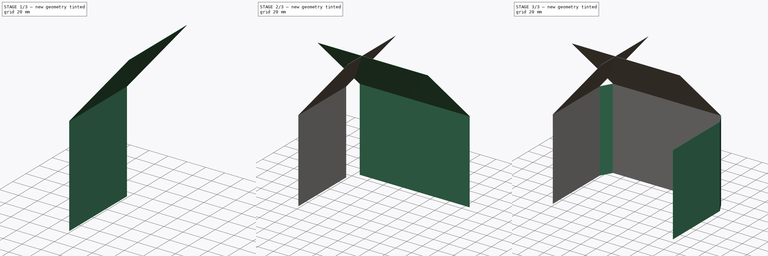
[diagram: build sequence overview — one tinted view per stage of 3, left to right]
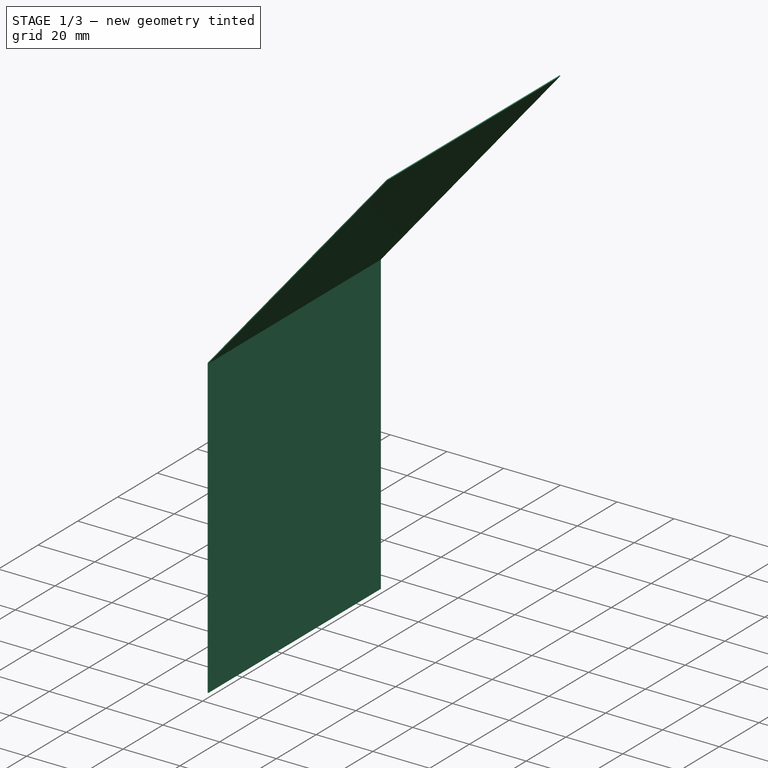
[diagram: stage 1 of 3 — iso view after this stage's code; geometry added in this stage tinted green]
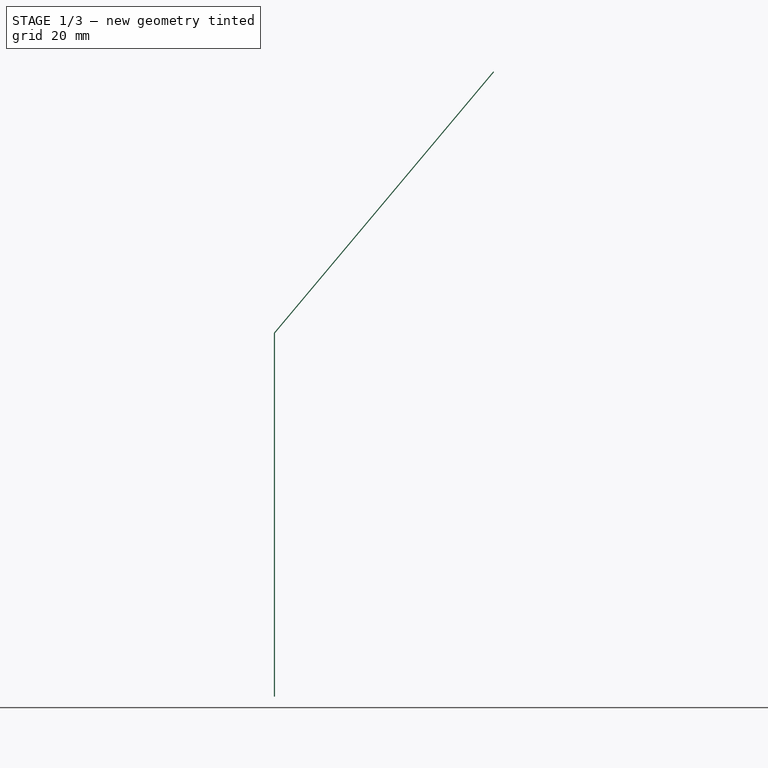
[diagram: stage 1 of 3 — front view after this stage's code; geometry added in this stage tinted green]
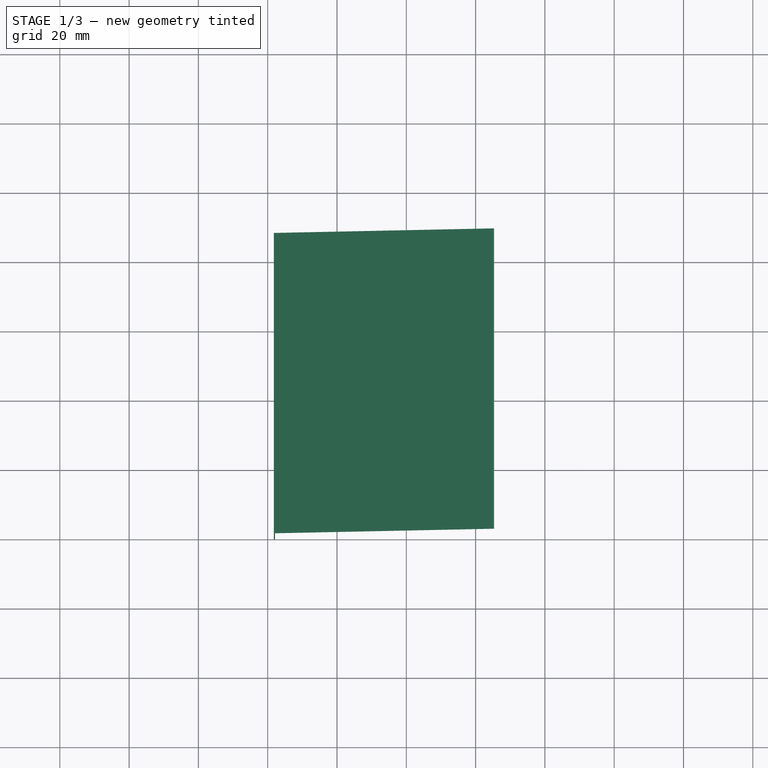
[diagram: stage 1 of 3 — top view after this stage's code; geometry added in this stage tinted green]
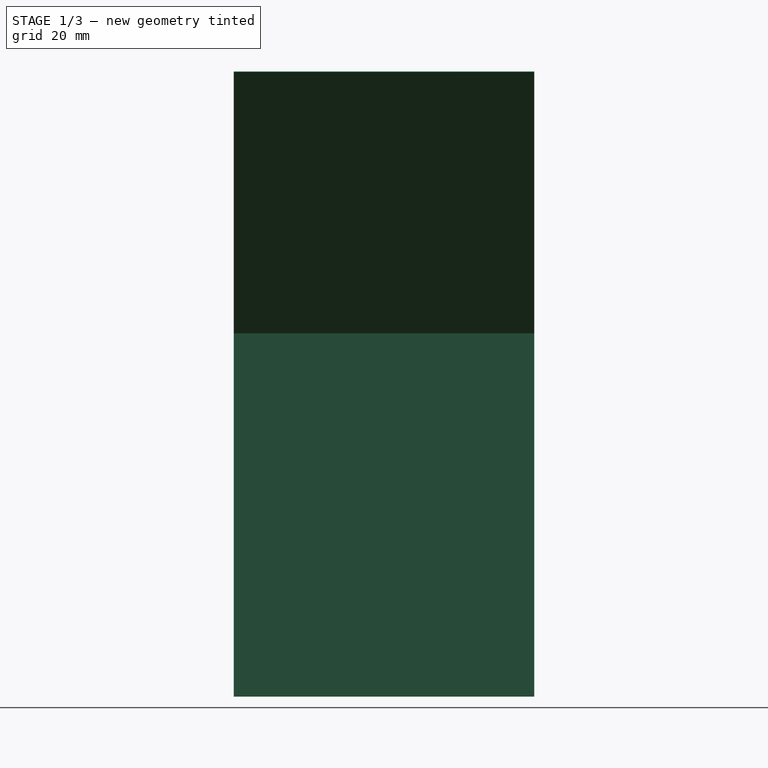
[diagram: stage 1 of 3 — right view after this stage's code; geometry added in this stage tinted green]
FCSTD DOCUMENT  (FreeCAD 0.22R36340 (Git))
Label: composit_stand8_bottom
License: All rights reserved
LicenseURL: http://en.wikipedia.org/wiki/All_rights_reserved
objects: Sketcher::SketchObject×5, Part::FeaturePython×5, PartDesign::FeaturePython×2, Part::Extrusion×2, Part::Mirroring×1, PartDesign::SubShapeBinder×1, PartDesign::Body×1
note: 17 computed .brp shape members not serialized (recipe doc carries the construction recipe); baked Part::Feature solids carry a one-line shape summary decoded from their .brp

FEATURE [Part::FeaturePython] BaseBend002  # WARN: FeaturePython — macro-defined, semantics opaque (R4)
  BendSide = 1
  BendSketch = -> Sketch002
  MidPlane = false
  Reverse = true
  length = 86.687
  radius = 0.1
  thickness = 0.3
  expr: length = <<Sketch>>.Constraints.side
FEATURE [Sketcher::SketchObject] Sketch003
  ExternalGeometry = -> [Sketch002]
  FullyConstrained = true
  Placement = pos=(0,0,0) rot=(1,0,0;1.5708rad)
  sketch-geometry (2):
    g0: LineSegment StartX=-14.8939 StartY=180.435 StartZ=0 EndX=-78.2081 EndY=104.98 EndZ=0
    g1: LineSegment StartX=-78.2081 StartY=104.98 StartZ=0 EndX=-78.2081 EndY=0 EndZ=0
  constraints (5):
    c: Coincident(g0,g1)
    c: Vertical(g1)
    c: PointOnObject(g1,g-1)
    c: Symmetric(g0,g-3,g-2)
    c: Symmetric(g0,g-3,g-2)
FEATURE [Part::FeaturePython] BaseBend003  # WARN: FeaturePython — macro-defined, semantics opaque (R4)
  BendSide = 1
  BendSketch = -> Sketch003
  MidPlane = false
  Reverse = true
  length = 86.687
  radius = 0.1
  thickness = 0.3
  expr: length = <<BaseBend002>>.length
FEATURE [Part::Extrusion] Extrude
  Base = -> Sketch002
  Dir = (0,-1,2e-16)
  DirMode = 2
  FaceMakerClass = Part::FaceMakerBullseye
  LengthFwd = 200
  LengthRev = 0
  Reversed = true
  Solid = false
  Symmetric = false
FEATURE [Part::Extrusion] Extrude001
  Base = -> Sketch001
  Dir = (1,0,0)
  DirMode = 2
  FaceMakerClass = Part::FaceMakerBullseye
  LengthFwd = 200
  LengthRev = 0
  Solid = false
  Symmetric = false
FEATURE [Part::FeaturePython] Cutout  # WARN: FeaturePython — macro-defined, semantics opaque (R4)
  Base = -> Extrude
  Tolerance = 0
  Tool = -> Extrude001
FEATURE [Sketcher::SketchObject] Sketch004
  AttachmentOffset = pos=(0,0,0) rot=(-1,0,0;1.5708rad)
  AttachmentSupport = -> [Sketch001]
  ExternalGeometry = -> [Cutout,Sketch]
  FullyConstrained = false
  MapMode = 7
  Placement = pos=(-3.5e-14,100.464,105) rot=(0,0.382683,0.92388;3.14159rad)
  sketch-geometry (7):
    g0: LineSegment StartX=-70.2782 StartY=0 StartZ=0 EndX=-70.2782 EndY=13.3366 EndZ=0
    g1: LineSegment StartX=-70.2782 StartY=13.3366 StartZ=0 EndX=-14.8939 EndY=106.681 EndZ=0
    g2: LineSegment StartX=-14.8939 StartY=106.681 StartZ=0 EndX=0 EndY=106.681 EndZ=0
    g3: LineSegment StartX=0 StartY=106.681 StartZ=0 EndX=0 EndY=146.515 EndZ=0
    g4: LineSegment StartX=0 StartY=146.515 StartZ=0 EndX=-128.948 EndY=146.515 EndZ=0
    g5: LineSegment StartX=-128.948 StartY=146.515 StartZ=0 EndX=-128.948 EndY=0 EndZ=0
    g6: LineSegment StartX=-128.948 StartY=0 StartZ=0 EndX=-70.2782 EndY=0 EndZ=0
  constraints (18):
    c: PointOnObject(g0,g-1)
    c: PointOnObject(g0,g-3)
    c: Vertical(g0)
    c: Coincident(g0,g1)
    c: Coincident(g1,g2)
    c: PointOnObject(g2,g-2)
    c: Horizontal(g2)
    c: Vertical(g0,g-4)
    c: Coincident(g1,g-3)
    c: Coincident(g2,g3)
    c: Vertical(g3)
    c: Coincident(g3,g4)
    c: Horizontal(g4)
    c: Coincident(g4,g5)
    c: PointOnObject(g5,g-1)
    c: Vertical(g5)
    c: Coincident(g5,g6)
    c: Coincident(g6,g0)
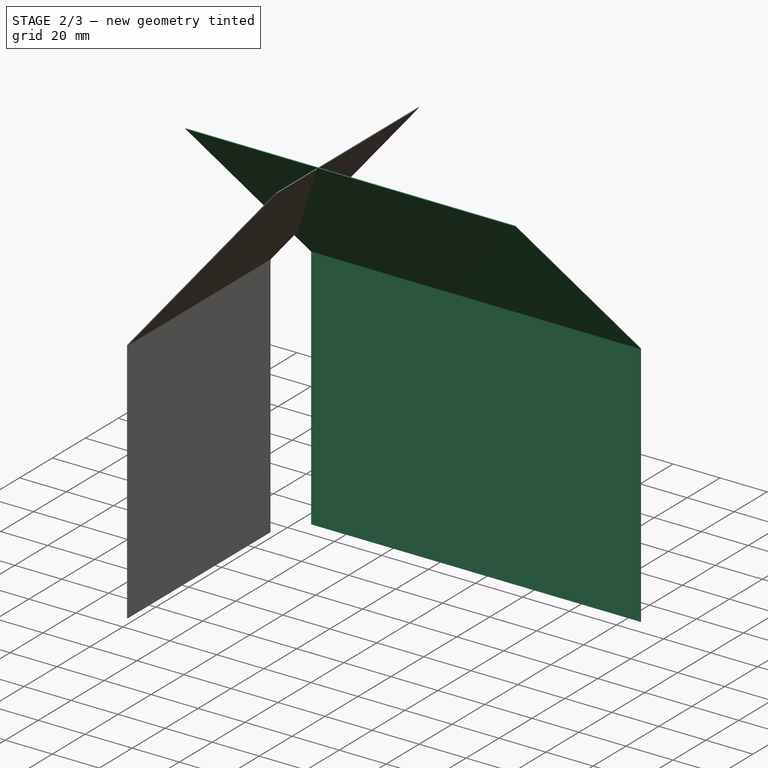
[diagram: stage 2 of 3 — iso view after this stage's code; geometry added in this stage tinted green]
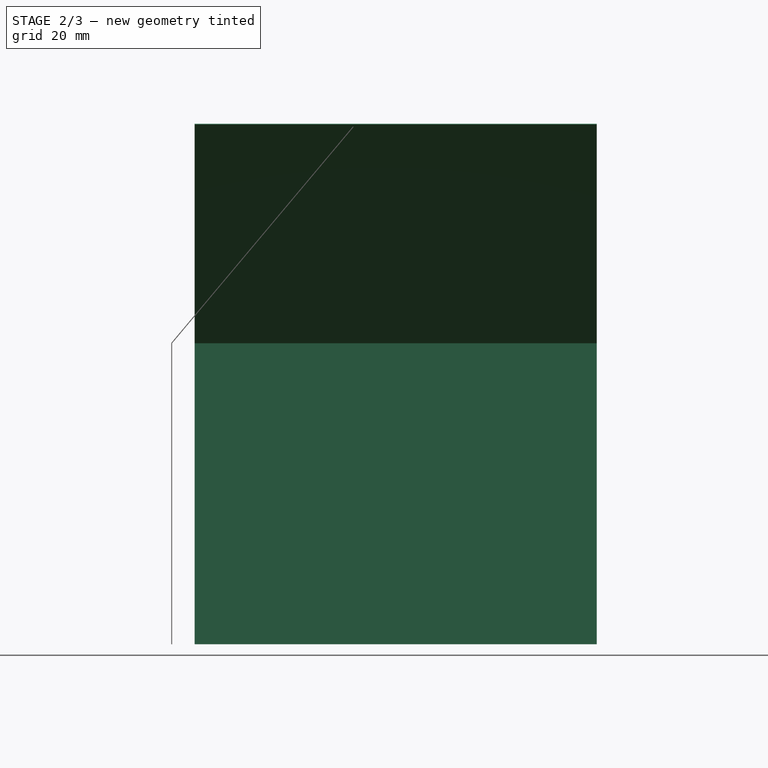
[diagram: stage 2 of 3 — front view after this stage's code; geometry added in this stage tinted green]
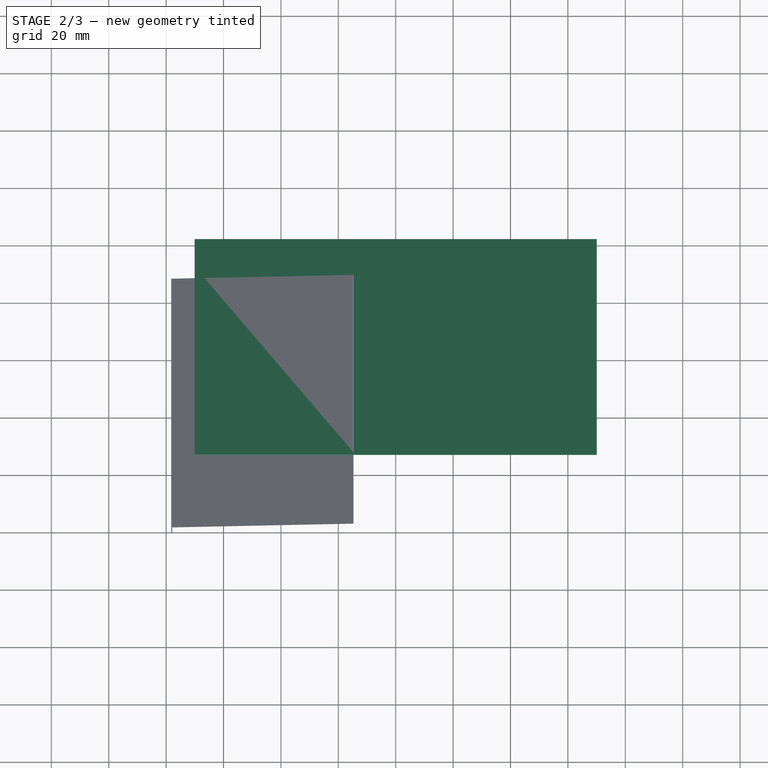
[diagram: stage 2 of 3 — top view after this stage's code; geometry added in this stage tinted green]
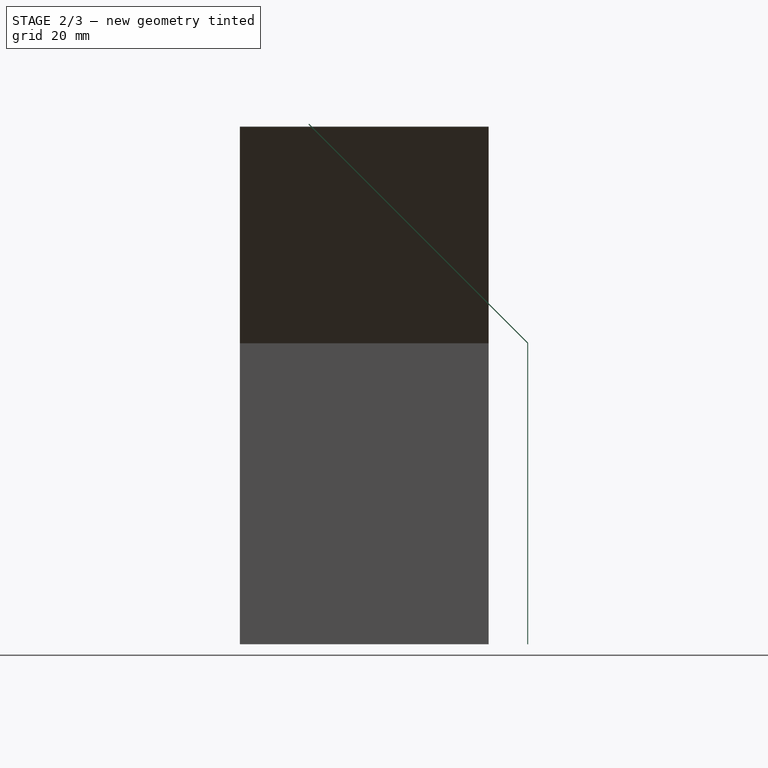
[diagram: stage 2 of 3 — right view after this stage's code; geometry added in this stage tinted green]
FEATURE [PartDesign::Body] Body
  Group = -> [Binder,BaseBend,Extend]
  Origin = -> Origin
  Tip = -> Extend
FEATURE [Sketcher::SketchObject] Sketch001
  FullyConstrained = false
  Placement = pos=(0,100.464,0) rot=(0.57735,0.57735,0.57735;2.0944rad)
  expr: .Placement.Base.y = <<Sketch>>.Constraints.width
  sketch-geometry (3):
    g0: LineSegment StartX=0 StartY=0 StartZ=0 EndX=0 EndY=105 EndZ=0
    g1: LineSegment StartX=0 StartY=105 StartZ=0 EndX=-76.3487 EndY=181.349 EndZ=0
    g2: ArcOfCircle CenterX=-0.4 CenterY=104.834 CenterZ=0 NormalX=0 NormalY=0 NormalZ=1 AngleXU=0 Radius=0.4 StartAngle=4.3e-15 EndAngle=0.785398
  constraints (9):
    c: Coincident(g-1,g0)
    c: PointOnObject(g0,g-2)
    c: Coincident(g0,g1)
    c: Tangent(g2,g0) = -1.5708
    c: Tangent(g2,g1) = -1.5708
    c: Radius(g2) = 0.4
    c: DistanceY(g2) = 104.834  'bottom'
    c: DistanceY(g0) = 105
    c: Angle(g1,g0) = 2.35619  'angle'
FEATURE [Sketcher::SketchObject] Sketch002
  FullyConstrained = false
  Placement = pos=(78.2082,0,0) rot=(1,0,0;1.5708rad)
  expr: .Placement.Base.x = <<Sketch>>.Constraints.length / 2
  expr: Constraints[6] = <<Sketch001>>.Constraints.bottom
  sketch-geometry (3):
    g0: LineSegment StartX=0 StartY=0 StartZ=0 EndX=0 EndY=104.98 EndZ=0
    g1: LineSegment StartX=0 StartY=104.98 StartZ=0 EndX=-63.3142 EndY=180.435 EndZ=0
    g2: ArcOfCircle CenterX=-0.4 CenterY=104.834 CenterZ=0 NormalX=0 NormalY=0 NormalZ=1 AngleXU=0 Radius=0.4 StartAngle=9.7e-15 EndAngle=0.698132
  constraints (8):
    c: Coincident(g-1,g0)
    c: PointOnObject(g0,g-2)
    c: Coincident(g0,g1)
    c: Tangent(g2,g0) = -1.5708
    c: Tangent(g2,g1) = -1.5708
    c: Radius(g2) = 0.4
    c: DistanceY(g2) = 104.834
    c: Angle(g1,g0) = 2.44346  'angle'
FEATURE [Part::FeaturePython] BaseBend001  # WARN: FeaturePython — macro-defined, semantics opaque (R4)
  BendSide = 1
  BendSketch = -> Sketch001
  MidPlane = true
  Reverse = false
  length = 140.096
  radius = 0.1
  thickness = 0.3
  expr: length = Sketch.Constraints.face
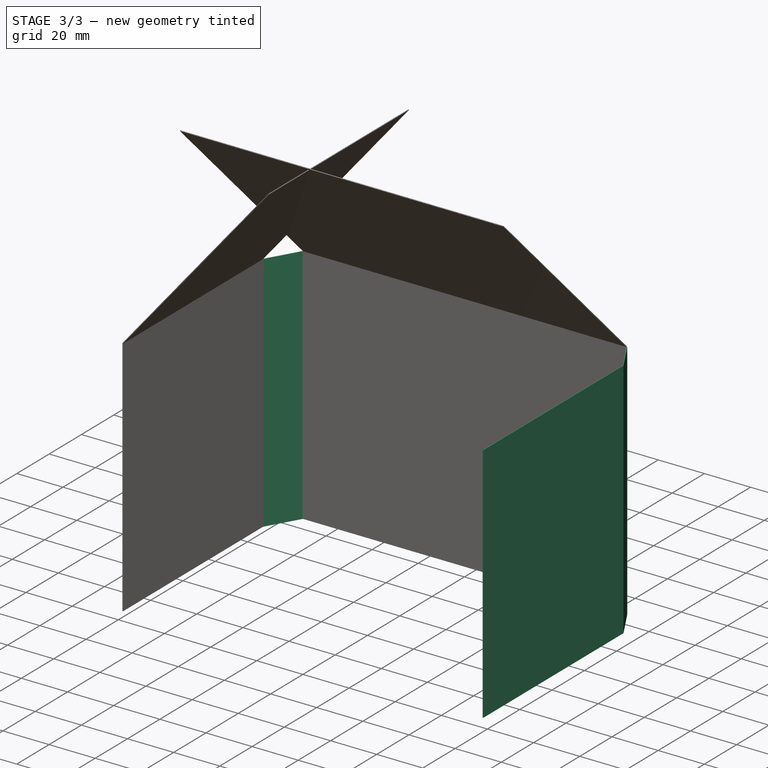
[diagram: stage 3 of 3 — iso view after this stage's code; geometry added in this stage tinted green]
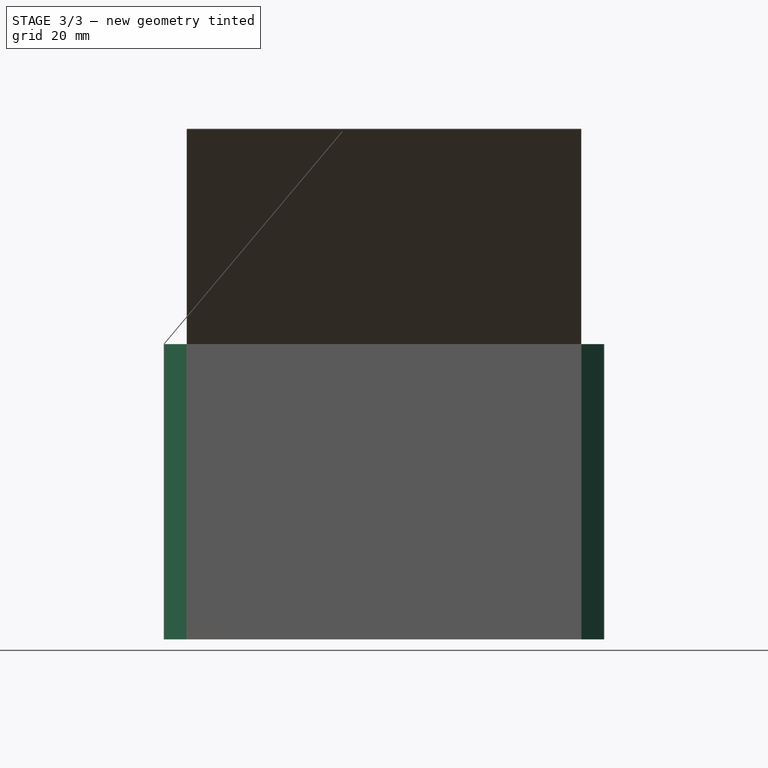
[diagram: stage 3 of 3 — front view after this stage's code; geometry added in this stage tinted green]
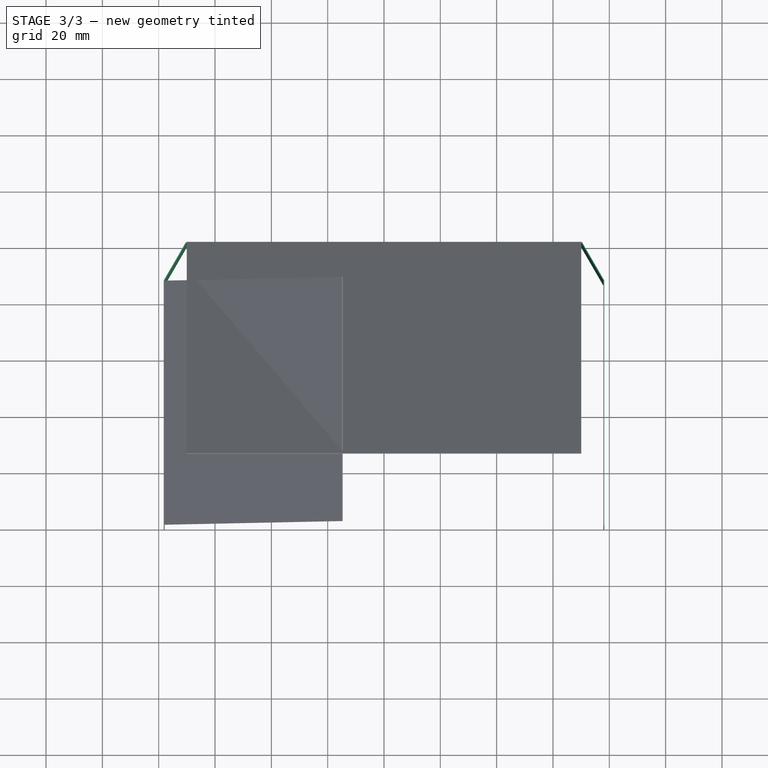
[diagram: stage 3 of 3 — top view after this stage's code; geometry added in this stage tinted green]
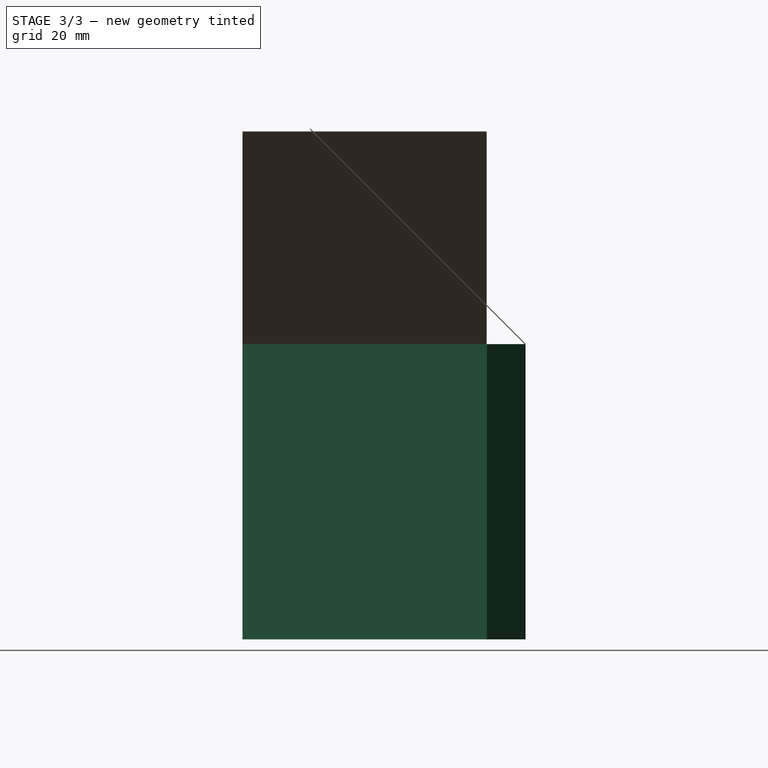
[diagram: stage 3 of 3 — right view after this stage's code; geometry added in this stage tinted green]
FEATURE [Sketcher::SketchObject] Sketch
  FullyConstrained = false
  sketch-geometry (7):
    g0: LineSegment StartX=78.2082 StartY=0 StartZ=0 EndX=78.2082 EndY=86.7946 EndZ=0
    g1: GeomPoint X=-78.2082 Y=86.7946 Z=0
    g2: LineSegment StartX=78.2082 StartY=86.7946 StartZ=0 EndX=70.2782 EndY=100.464 EndZ=0
    g3: LineSegment StartX=70.2782 StartY=100.464 StartZ=0 EndX=0 EndY=100.464 EndZ=0
    g4: ArcOfCircle CenterX=70.0478 CenterY=100.064 CenterZ=0 NormalX=0 NormalY=0 NormalZ=1 AngleXU=0 Radius=0.4 StartAngle=0.525666 EndAngle=1.5708
    g5: GeomPoint X=-70.0478 Y=100.464 Z=0
    g6: ArcOfCircle CenterX=77.8081 CenterY=86.687 CenterZ=0 NormalX=0 NormalY=0 NormalZ=1 AngleXU=0 Radius=0.4 StartAngle=-3.6e-15 EndAngle=0.525666
  constraints (18):
    c: PointOnObject(g0,g-1)
    c: Vertical(g0)
    c: PointOnObject(g3,g-2)
    c: Symmetric(g1,g0,g-2)
    c: DistanceX(g1,g0) = 156.416  'length'
    c: Coincident(g2,g3)
    c: Horizontal(g3)
    c: Coincident(g0,g2)
    c: Tangent(g4,g3) = -1.5708
    c: Tangent(g4,g2) = -1.5708
    c: DistanceY(g3) = 100.464  'width'
    c: Symmetric(g5,g4,g-2)
    c: Radius(g4) = 0.4
    c: Distance(g4,g5) = 140.096  'face'
    c: Tangent(g6,g0) = -1.5708
    c: Tangent(g6,g2) = -1.5708
    c: Equal(g6,g4)
    c: Distance(g6,g0) = 86.687  'side'
FEATURE [Part::Mirroring] Part__Mirroring  label="Sketch (Mirror #1)"
  Base = (0,0,0)
  Normal = (1,0,0)
  Source = -> Sketch
FEATURE [Part::FeaturePython] Connect  # WARN: FeaturePython — macro-defined, semantics opaque (R4)
  Objects = -> [Sketch,Part__Mirroring]
  Tolerance = 0
FEATURE [PartDesign::SubShapeBinder] Binder
  BindCopyOnChange = 0
  BindMode = 0
  ClaimChildren = true
  Context = -> Body [Binder.]
  Fuse = false
  MakeFace = true
  OffsetFill = false
  OffsetIntersection = false
  OffsetJoinType = 0
  OffsetOpenResult = false
  PartialLoad = false
  Relative = false
  Support = -> [Connect]
  _Version = 2
FEATURE [PartDesign::FeaturePython] BaseBend  # WARN: FeaturePython — macro-defined, semantics opaque (R4)
  BendSide = 1
  BendSketch = -> Binder
  MidPlane = false
  Reverse = false
  Suppressed = false
  length = 104.834
  radius = 0.1
  thickness = 0.3
  expr: length = <<Sketch001>>.Constraints.bottom
FEATURE [PartDesign::FeaturePython] Extend  # WARN: FeaturePython — macro-defined, semantics opaque (R4)
  BaseFeature = -> BaseBend
  Offset = 0.02
  Refine = true
  Suppressed = false
  UseSubtraction = false
  baseObject = -> BaseBend [Face1]
  gap1 = 0
  gap2 = 0
  length = 0
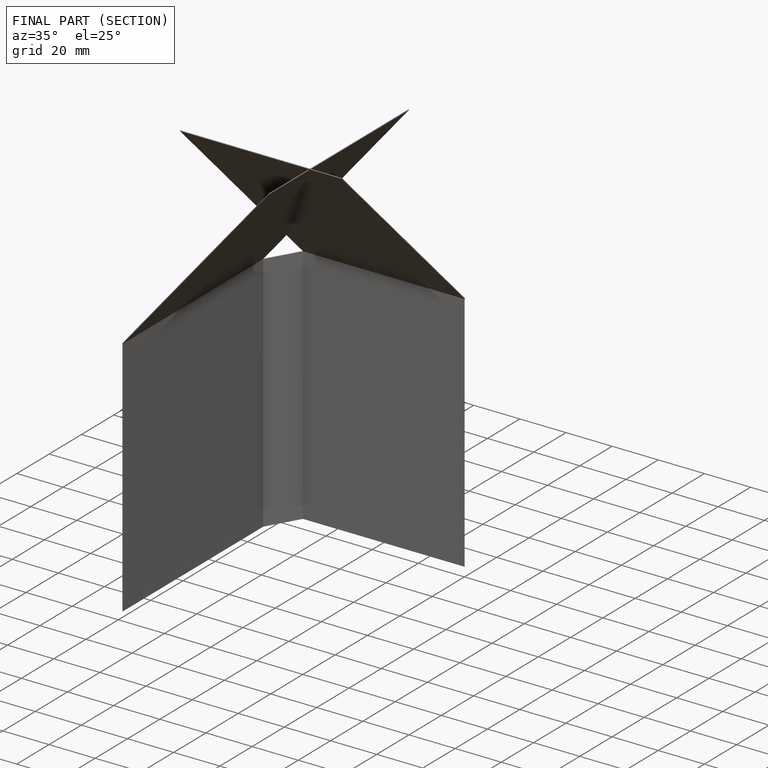
[diagram: finished part — half-section view (interior)]
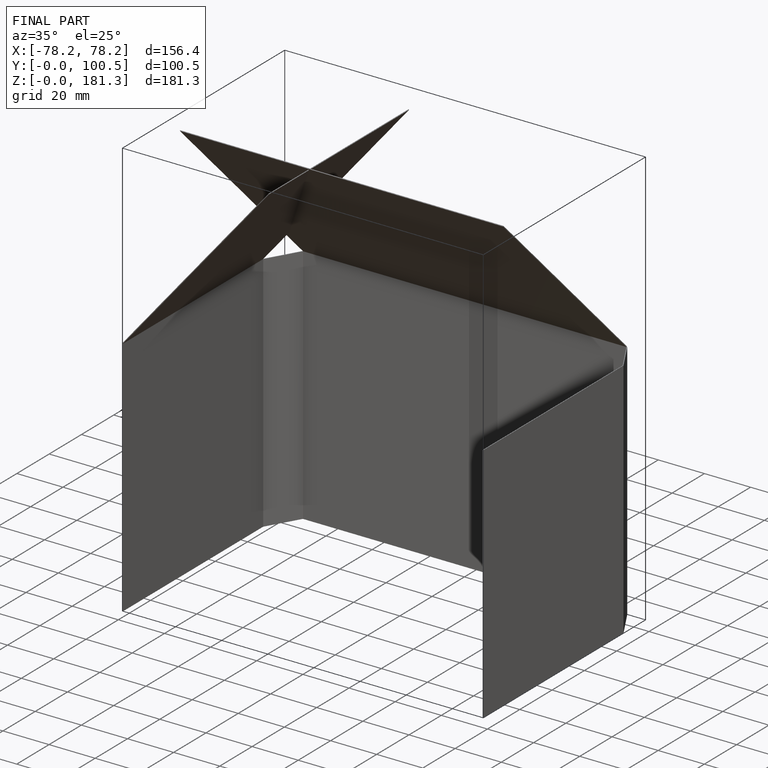
[diagram: finished part — iso view with bounding-box wireframe]
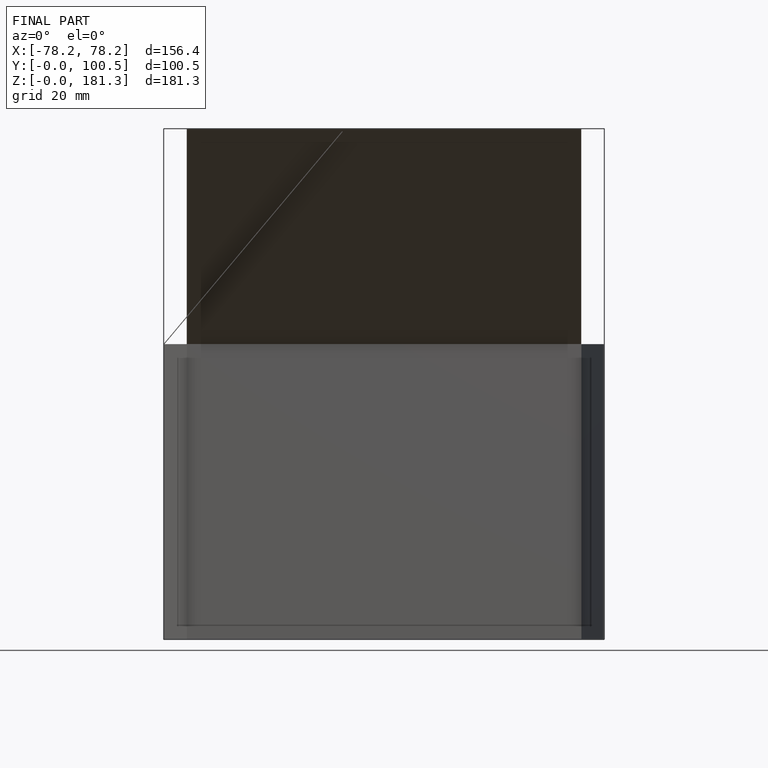
[diagram: finished part — front view with bounding-box wireframe]
